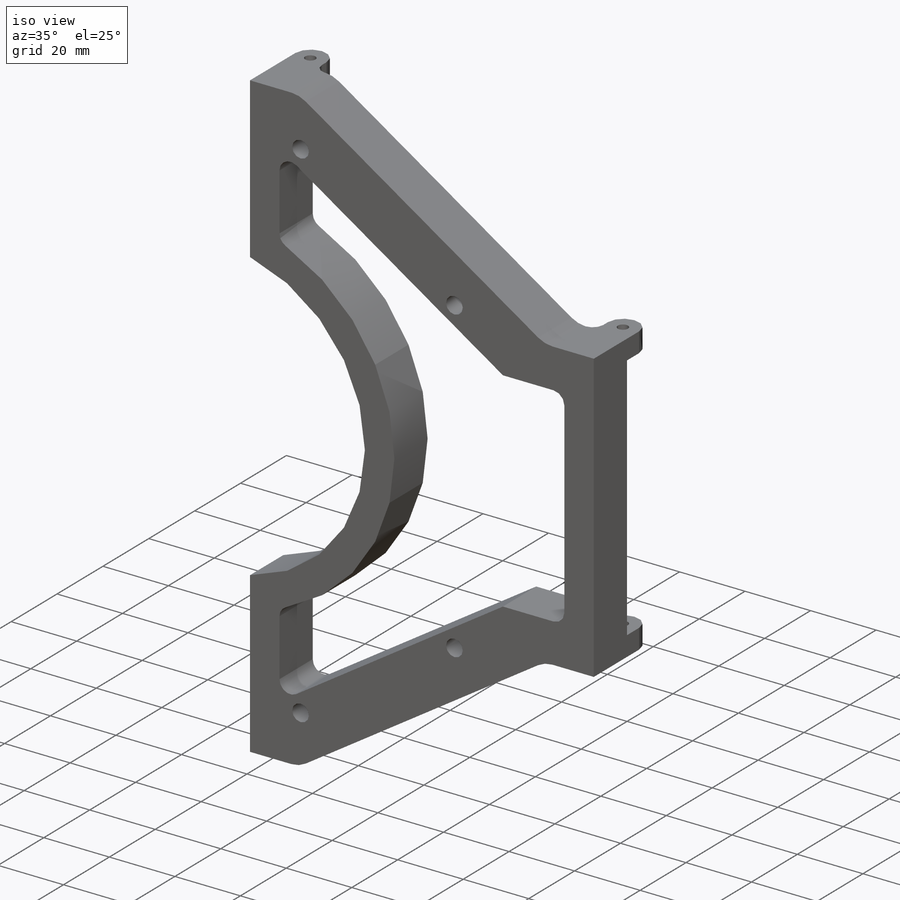
[diagram: iso view]
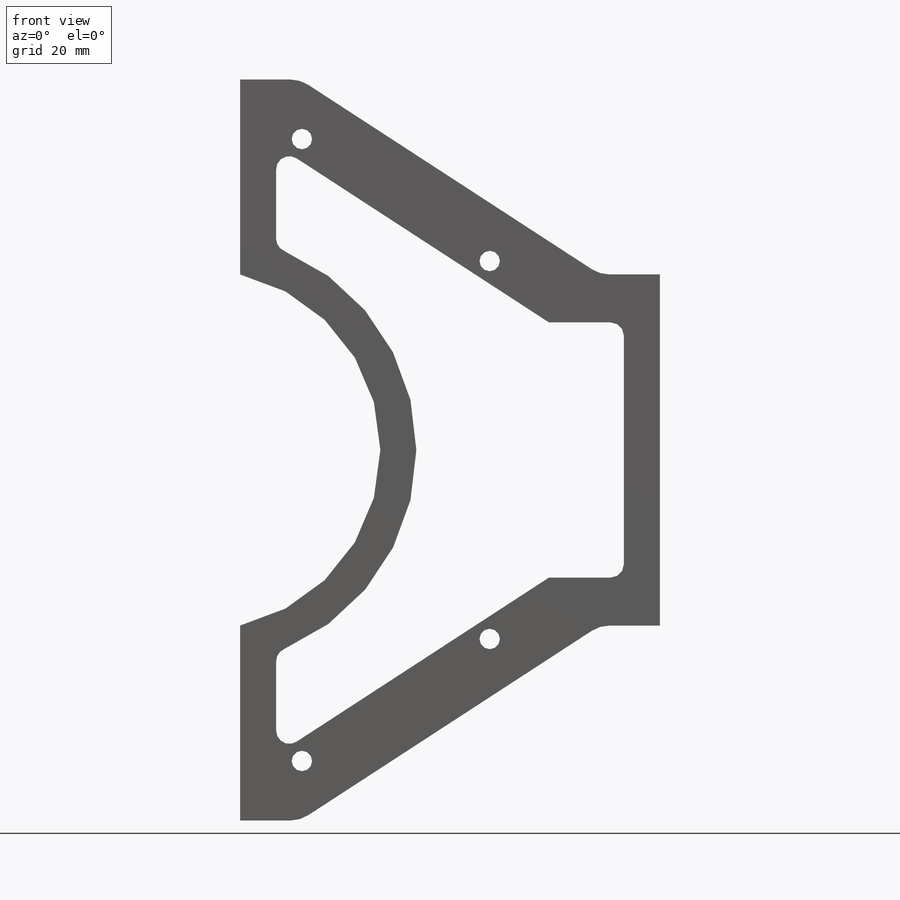
[diagram: front view]
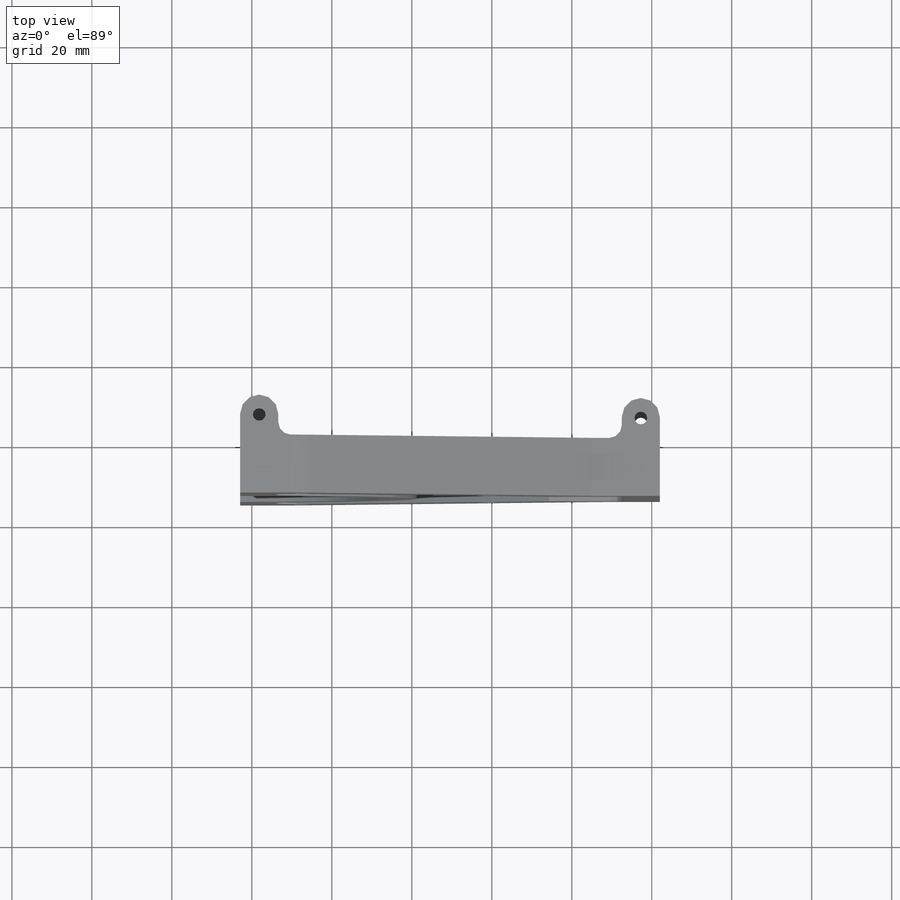
[diagram: top view]
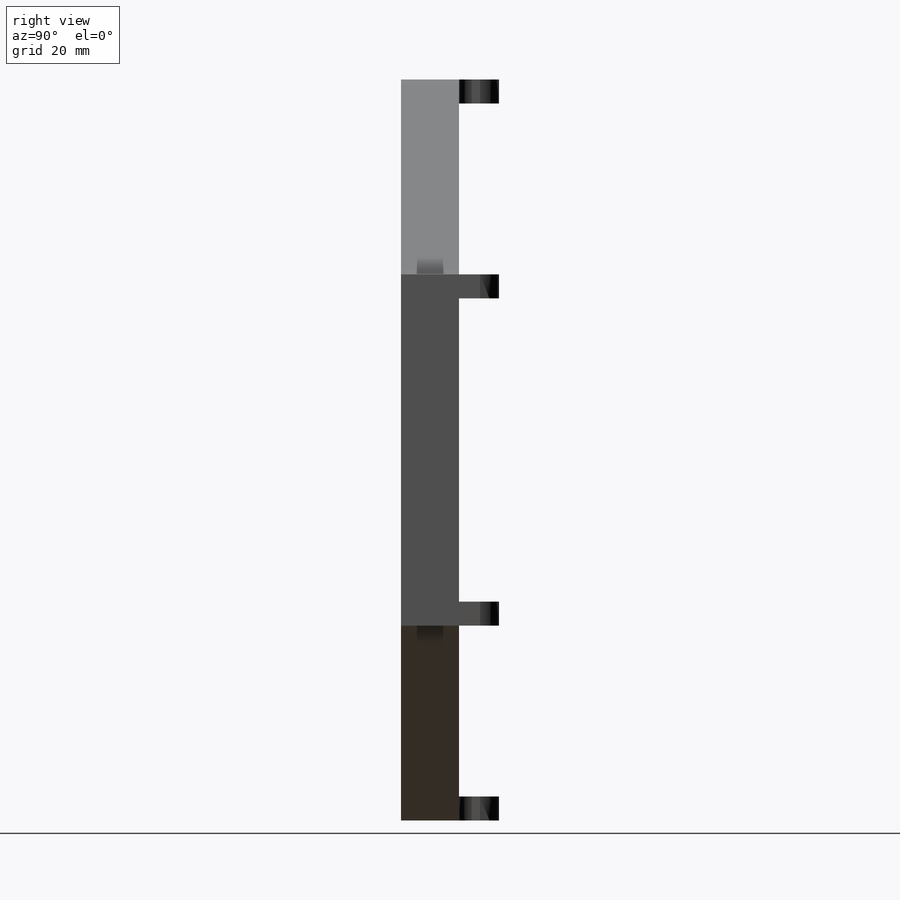
[diagram: right view]
SOLIDWORKS PART (.sldprt)
format: sldprt  version: not decoded by parser v0  size: 391,168 bytes
history: native  units: mm
features: sketch x8, fillet x4, extrude x3, mirror x3, cut_extrude x3, material x1, hole x1 (+11 scaffold rows collapsed)
feature tree (34):
  scaffold x11  (default folders/planes/origin — collapsed)
  material  "6061-T6 (SS)"
  sketch  "Sketch1"  dims[c1.D1=15.0mm c1.D2=182.025mm c1.D3=~120.282289mm c1.D4=~92.631403mm c1.D5=43.9mm c2.D3=4.7625mm c2.D6=~95.422702mm]
  extrude  "Boss-Extrude1"  Depth=14.5mm
  sketch  "Sketch2"  dims[D3=3.1877mm D1=9.525mm D2=10.0mm]
  extrude  "Boss-Extrude2"  Depth=6mm
  sketch  "Sketch3"  dims[D3=3.1877mm D1=10.0mm D2=9.525mm]
  extrude  "Boss-Extrude3"  Depth=6mm
  fillet  "Fillet1"  Radius=4.7625mm
  fillet  "Fillet2"  Radius=3.175mm
  fillet  "Fillet3"  Radius=8mm
  mirror  "Mirror1"
  sketch  "Sketch4"  dims[D2=90.0mm D1=14.7mm]
  cut_extrude  "Cut-Extrude2"  [1 undecoded]
  sketch  "Sketch5"  dims[D1=50.0mm D2=20.9731mm]
  cut_extrude  "Cut-Extrude3"  [1 undecoded]
  hole  "#10 Clearance Hole1"  Diameter=5.1054mm Depth=135.89mm
  sketch  "Sketch7"  dims[D1=~62.401431mm D2=~15.435879mm D3=~47.255938mm D4=~77.755724mm]
  sketch  "Sketch6"  dims[hole-wizard template sketch: 47 standard entries collapsed; hole parameters kept: c15.Hole Depth=135.89mm c15.D3=~14.816244mm c15.Drill Angle=118.0deg]
  mirror  "Mirror2"
  sketch  "Sketch8"  dims[D1=9.0mm D2=17.0mm D3=9.0mm D4=9.0mm D5=12.0mm]
  cut_extrude  "Cut-Extrude4"  [1 undecoded]
  mirror  "Mirror3"
  fillet  "Fillet4"  Radius=3.3mm
decode coverage: 16 of 22 modeling features carry decoded parameters
note: ~ marks probable driven/reference dimensions
note: 3 parameter values undecoded
summary: no parameter record found for 3 features
note: suppression state not decoded; provenance and decode notes live in map.json
